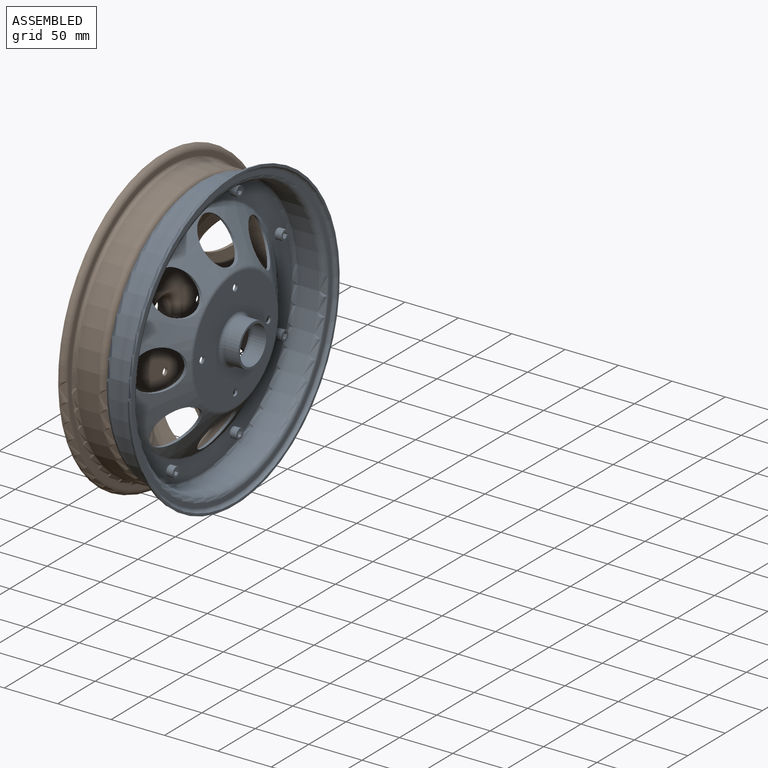
[diagram: assembled view]
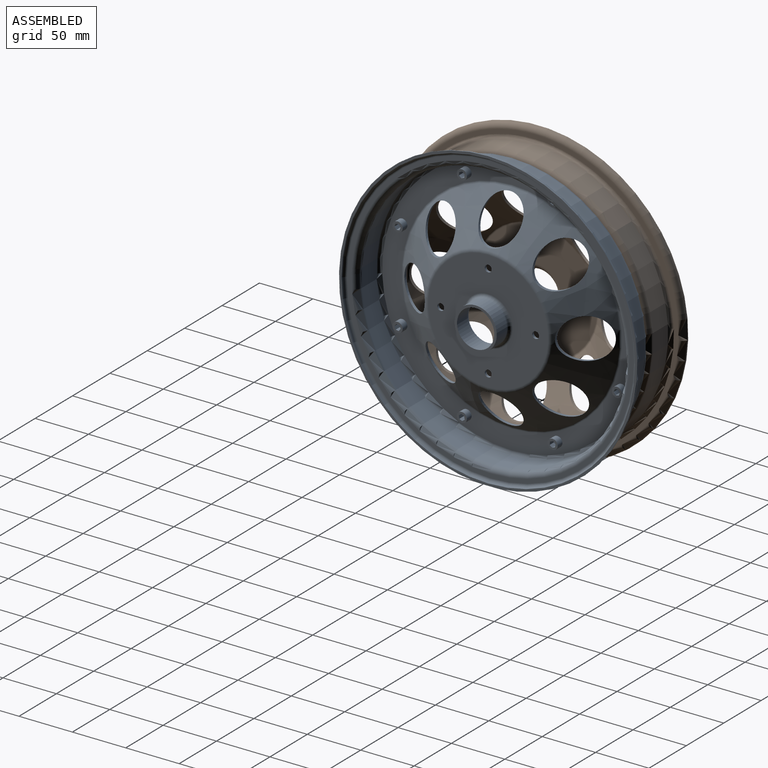
[diagram: assembled view, second angle]
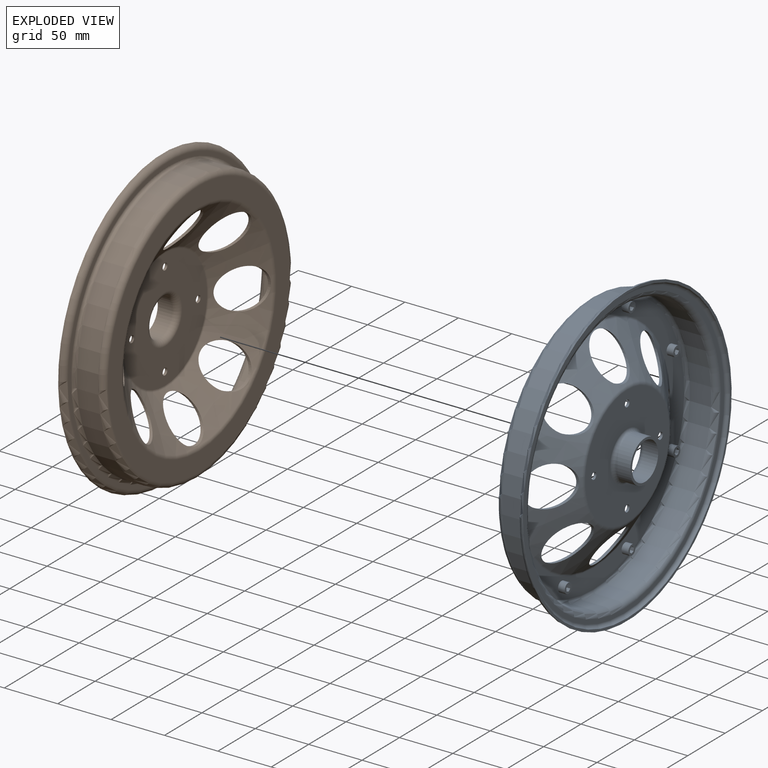
[diagram: exploded view]
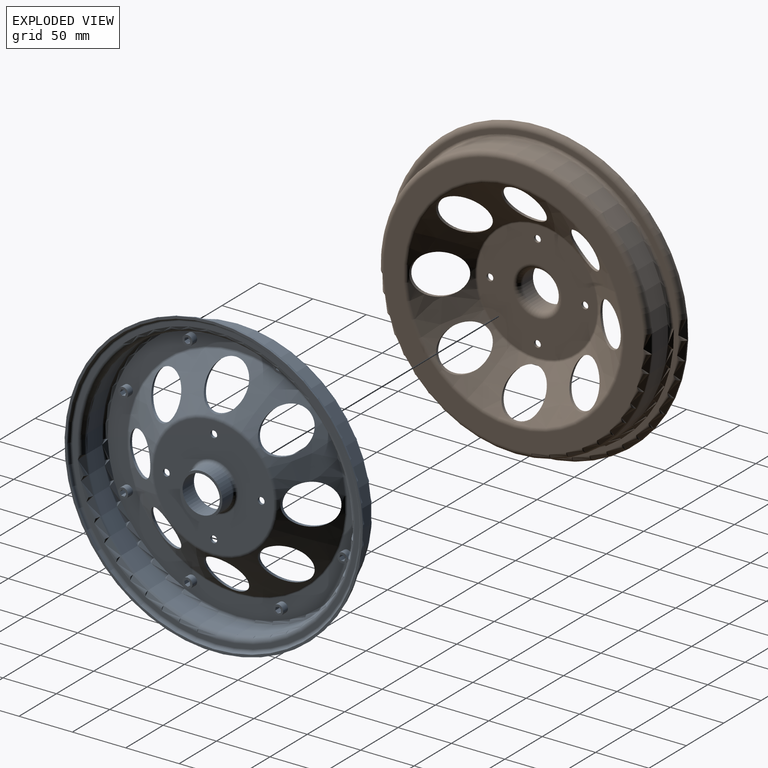
[diagram: exploded view, second angle]
ASSEMBLY  parts=2 mates=2
PART A: 110 faces, bbox 50.8x302.4x302.4 mm
  f0: plane 5.82x5.42mm, normal (-1,0,0), area 22.3mm2, adj f7,f8,f9,f10,f11,f12
  f1: plane 5.82x5.42mm, normal (-1,0,0), area 22.3mm2, adj f15,f16,f17,f18,f19,f20
  f2: plane 5.82x5.42mm, normal (-1,0,0), area 22.3mm2, adj f23,f24,f25,f26,f27,f28
  f3: plane 5.82x5.42mm, normal (-1,0,0), area 22.3mm2, adj f31,f32,f33,f34,f35,f36
  f4: plane 5.82x5.42mm, normal (-1,0,0), area 22.3mm2, adj f39,f40,f41,f42,f43,f44
  f5: plane 5.82x5.42mm, normal (-1,0,0), area 22.3mm2, adj f47,f48,f49,f50,f51,f52
  f6: plane 5.82x5.42mm, normal (-1,0,0), area 22.3mm2, adj f55,f56,f57,f58,f59,f60
  f7: plane 6.35x2.71mm, normal (0,-0.38,-0.92), area 18.6mm2, adj f0,f8,f12,f14
  f8: plane 6.35x2.33mm, normal (0,0.61,-0.79), area 18.6mm2, adj f0,f7,f9,f14
  f9: plane 6.35x2.91mm, normal (0,0.99,0.13), area 18.6mm2, adj f0,f8,f10,f14
  f10: plane 6.35x2.71mm, normal (0,0.38,0.92), area 18.6mm2, adj f0,f9,f11,f14
  f11: plane 6.35x2.33mm, normal (0,-0.61,0.79), area 18.6mm2, adj f0,f10,f12,f14
  f12: plane 6.35x2.91mm, normal (0,-0.99,-0.13), area 18.6mm2, adj f0,f7,f11,f14
  f13: cylinder r=4.76mm len=9.53mm, axis (1,0,0), area 190mm2, adj f14,f86
  f14: plane 9.53x9.53mm, normal (-1,0,0), area 48.9mm2, adj f7,f8,f9,f10,f11,f12,f13
  f15: plane 6.35x2.71mm, normal (0,-0.92,-0.38), area 18.6mm2, adj f1,f16,f20,f22
  f16: plane 6.35x2.91mm, normal (0,-0.13,-0.99), area 18.6mm2, adj f1,f15,f17,f22
  f17: plane 6.35x2.33mm, normal (0,0.79,-0.61), area 18.6mm2, adj f1,f16,f18,f22
  f18: plane 6.35x2.71mm, normal (0,0.92,0.38), area 18.6mm2, adj f1,f17,f19,f22
  f19: plane 6.35x2.91mm, normal (0,0.13,0.99), area 18.6mm2, adj f1,f18,f20,f22
  f20: plane 6.35x2.33mm, normal (0,-0.79,0.61), area 18.6mm2, adj f1,f15,f19,f22
  f21: cylinder r=4.76mm len=9.53mm, axis (1,0,0), area 190mm2, adj f22,f86
  f22: plane 9.53x9.53mm, normal (-1,0,0), area 48.9mm2, adj f15,f16,f17,f18,f19,f20,f21
  f23: plane 6.35x2.71mm, normal (0,-0.92,0.38), area 18.6mm2, adj f2,f24,f28,f30
  f24: plane 6.35x2.33mm, normal (0,-0.79,-0.61), area 18.6mm2, adj f2,f23,f25,f30
  f25: plane 6.35x2.91mm, normal (0,0.13,-0.99), area 18.6mm2, adj f2,f24,f26,f30
  f26: plane 6.35x2.71mm, normal (0,0.92,-0.38), area 18.6mm2, adj f2,f25,f27,f30
  f27: plane 6.35x2.33mm, normal (0,0.79,0.61), area 18.6mm2, adj f2,f26,f28,f30
  f28: plane 6.35x2.91mm, normal (0,-0.13,0.99), area 18.6mm2, adj f2,f23,f27,f30
  f29: cylinder r=4.76mm len=9.53mm, axis (1,0,0), area 190mm2, adj f30,f86
  f30: plane 9.53x9.53mm, normal (-1,0,0), area 48.9mm2, adj f23,f24,f25,f26,f27,f28,f29
  f31: plane 6.35x2.71mm, normal (0,-0.38,0.92), area 18.6mm2, adj f3,f32,f36,f38
  f32: plane 6.35x2.91mm, normal (0,-0.99,0.13), area 18.6mm2, adj f3,f31,f33,f38
  f33: plane 6.35x2.33mm, normal (0,-0.61,-0.79), area 18.6mm2, adj f3,f32,f34,f38
  f34: plane 6.35x2.71mm, normal (0,0.38,-0.92), area 18.6mm2, adj f3,f33,f35,f38
  f35: plane 6.35x2.91mm, normal (0,0.99,-0.13), area 18.6mm2, adj f3,f34,f36,f38
  f36: plane 6.35x2.33mm, normal (0,0.61,0.79), area 18.6mm2, adj f3,f31,f35,f38
  f37: cylinder r=4.76mm len=9.53mm, axis (1,0,0), area 190mm2, adj f38,f86
  f38: plane 9.53x9.53mm, normal (-1,0,0), area 48.9mm2, adj f31,f32,f33,f34,f35,f36,f37
  f39: plane 6.35x2.71mm, normal (0,0.38,0.92), area 18.6mm2, adj f4,f40,f44,f46
  f40: plane 6.35x2.33mm, normal (0,-0.61,0.79), area 18.6mm2, adj f4,f39,f41,f46
  f41: plane 6.35x2.91mm, normal (0,-0.99,-0.13), area 18.6mm2, adj f4,f40,f42,f46
  f42: plane 6.35x2.71mm, normal (0,-0.38,-0.92), area 18.6mm2, adj f4,f41,f43,f46
  f43: plane 6.35x2.33mm, normal (0,0.61,-0.79), area 18.6mm2, adj f4,f42,f44,f46
  f44: plane 6.35x2.91mm, normal (0,0.99,0.13), area 18.6mm2, adj f4,f39,f43,f46
  f45: cylinder r=4.76mm len=9.53mm, axis (1,0,0), area 190mm2, adj f46,f86
  f46: plane 9.53x9.53mm, normal (-1,0,0), area 48.9mm2, adj f39,f40,f41,f42,f43,f44,f45
  f47: plane 6.35x2.71mm, normal (0,0.92,0.38), area 18.6mm2, adj f5,f48,f52,f54
  f48: plane 6.35x2.91mm, normal (0,0.13,0.99), area 18.6mm2, adj f5,f47,f49,f54
  f49: plane 6.35x2.33mm, normal (0,-0.79,0.61), area 18.6mm2, adj f5,f48,f50,f54
  f50: plane 6.35x2.71mm, normal (0,-0.92,-0.38), area 18.6mm2, adj f5,f49,f51,f54
  f51: plane 6.35x2.91mm, normal (0,-0.13,-0.99), area 18.6mm2, adj f5,f50,f52,f54
  f52: plane 6.35x2.33mm, normal (0,0.79,-0.61), area 18.6mm2, adj f5,f47,f51,f54
  f53: cylinder r=4.76mm len=9.53mm, axis (1,0,0), area 190mm2, adj f54,f86
  f54: plane 9.53x9.53mm, normal (-1,0,0), area 48.9mm2, adj f47,f48,f49,f50,f51,f52,f53
  f55: plane 6.35x2.71mm, normal (0,0.92,-0.38), area 18.6mm2, adj f6,f56,f60,f62
  f56: plane 6.35x2.33mm, normal (0,0.79,0.61), area 18.6mm2, adj f6,f55,f57,f62
  f57: plane 6.35x2.91mm, normal (0,-0.13,0.99), area 18.6mm2, adj f6,f56,f58,f62
  f58: plane 6.35x2.71mm, normal (0,-0.92,0.38), area 18.6mm2, adj f6,f57,f59,f62
  f59: plane 6.35x2.33mm, normal (0,-0.79,-0.61), area 18.6mm2, adj f6,f58,f60,f62
  f60: plane 6.35x2.91mm, normal (0,0.13,-0.99), area 18.6mm2, adj f6,f55,f59,f62
  f61: cylinder r=4.76mm len=9.53mm, axis (1,0,0), area 190mm2, adj f62,f86
  f62: plane 9.53x9.53mm, normal (-1,0,0), area 48.9mm2, adj f55,f56,f57,f58,f59,f60,f61
  f63: cylinder r=3.17mm len=6.35mm, axis (-1,0,0), area 45.6mm2, adj f74,f78
  f64: cylinder r=3.17mm len=6.35mm, axis (-1,0,0), area 45.6mm2, adj f74,f78
  f65: cylinder r=3.17mm len=6.35mm, axis (-1,0,0), area 45.6mm2, adj f74,f78
  f66: cylinder r=19.05mm len=38.1mm, axis (1,0,0), area 337.6mm2, adj f73,f79
  f67: cylinder r=19.05mm len=38.1mm, axis (1,0,0), area 337.6mm2, adj f73,f79
  f68: cylinder r=19.05mm len=38.1mm, axis (1,0,0), area 337.6mm2, adj f73,f79
  f69: cylinder r=19.05mm len=38.1mm, axis (1,0,0), area 336.1mm2, adj f73,f79
  f70: cylinder r=19.05mm len=38.1mm, axis (1,0,0), area 337.6mm2, adj f73,f79
  f71: cylinder r=19.05mm len=38.1mm, axis (1,0,0), area 337.6mm2, adj f73,f79
  f72: cylinder r=19.05mm len=38.1mm, axis (1,0,0), area 337.6mm2, adj f73,f79
  f73: cone r=102.33mm half-angle=54.5deg, axis (1,0,0), area 15015.3mm2, adj f66,f67,f68,f69,f70,f71,f72,f92
  f74: plane 112.27x112.27mm, normal (-1,0,0), area 8121.2mm2, adj f63,f64,f65,f87,f93,f100
  f75: cylinder r=19.75mm len=39.5mm, axis (1,0,0), area 1686.2mm2, adj f76,f87
  f76: plane 39.5x39.5mm, normal (-1,0,0), area 267.2mm2, adj f75,f77
  f77: cylinder r=17.46mm len=34.93mm, axis (1,0,0), area 1491mm2, adj f76,f94
  f78: plane 112.27x112.27mm, normal (1,0,0), area 8121.2mm2, adj f63,f64,f65,f88,f94,f100
  f79: cone r=57.15mm half-angle=54.5deg, axis (1,0,0), area 14496.3mm2, adj f66,f67,f68,f69,f70,f71,f72,f88
  f80: plane 243.08x243.08mm, normal (1,0,0), area 12850.7mm2, adj f95,f96
  f81: cylinder r=127mm len=254mm, axis (1,0,0), area 15910.6mm2, adj f89,f96
  f82: plane 268.48x268.48mm, normal (1,0,0), area 3375.9mm2, adj f89,f97
  f83: plane 279.4x279.4mm, normal (-1,0,0), area 1990.1mm2, adj f90,f97
  f84: plane 268.48x268.48mm, normal (-1,0,0), area 3375.9mm2, adj f90,f98
  f85: cylinder r=124.71mm len=249.43mm, axis (1,0,0), area 15624.2mm2, adj f91,f98
  f86: plane 243.08x243.08mm, normal (-1,0,0), area 12280.6mm2, adj f13,f21,f29,f37,f45,f53,f61,f91
  f87: torus R=22.92mm, axis (-1,0,0), area 655mm2, adj f74,f75
  f88: torus R=56.13mm, axis (1,0,0), area 706.3mm2, adj f78,f79
  f89: torus R=130.18mm, axis (1,0,0), area 4015.8mm2, adj f81,f82
  f90: torus R=134.24mm, axis (-1,0,0), area 4269.9mm2, adj f83,f84
  f91: torus R=121.54mm, axis (-1,0,0), area 3871.9mm2, adj f85,f86
  f92: torus R=103.35mm, axis (-1,0,0), area 1267mm2, adj f73,f86
  f93: torus R=56.13mm, axis (-1,0,0), area 1229.5mm2, adj f73,f74
  f94: torus R=22.92mm, axis (1,0,0), area 1048.1mm2, adj f77,f78
  f95: torus R=103.35mm, axis (1,0,0), area 2164.6mm2, adj f79,f80
  f96: torus R=121.54mm, axis (1,0,0), area 6738.1mm2, adj f80,f81
  f97: torus R=134.24mm, axis (1,0,0), area 7422.6mm2, adj f82,f83
  f98: torus R=130.18mm, axis (-1,0,0), area 6828.8mm2, adj f84,f85
  f99: cylinder r=19.05mm len=38.1mm, axis (1,0,0), area 337.6mm2, adj f73,f79
  f100: cylinder r=3.17mm len=6.35mm, axis (-1,0,0), area 45.6mm2, adj f74,f78
  f101: plane 6.35x2.71mm, normal (0,0.38,-0.92), area 18.6mm2, adj f102,f106,f108,f109
  f102: plane 6.35x2.91mm, normal (0,0.99,-0.13), area 18.6mm2, adj f101,f103,f108,f109
  f103: plane 6.35x2.33mm, normal (0,0.61,0.79), area 18.6mm2, adj f102,f104,f108,f109
  f104: plane 6.35x2.71mm, normal (0,-0.38,0.92), area 18.6mm2, adj f103,f105,f108,f109
  f105: plane 6.35x2.91mm, normal (0,-0.99,0.13), area 18.6mm2, adj f104,f106,f108,f109
  f106: plane 6.35x2.33mm, normal (0,-0.61,-0.79), area 18.6mm2, adj f101,f105,f108,f109
  f107: cylinder r=4.76mm len=9.53mm, axis (1,0,0), area 190mm2, adj f86,f108
  f108: plane 9.53x9.53mm, normal (-1,0,0), area 48.9mm2, adj f101,f102,f103,f104,f105,f106,f107
  f109: plane 5.82x5.42mm, normal (-1,0,0), area 22.3mm2, adj f101,f102,f103,f104,f105,f106
PART B: same geometry as A
PLACE A rot(axis=(0,1,0),180deg) t=(-71.86,-37.12,178.08)mm
PLACE B t=(-71.86,-37.12,178.08)mm
MATE planar A.f73 <-> B.f73  axis (-1,0,0) through (-71.86,-37.12,178.08)mm
MATE cylindrical B.f73 <-> A.f73  axis (1,0,0) through (-115.86,-37.12,178.08)mm
